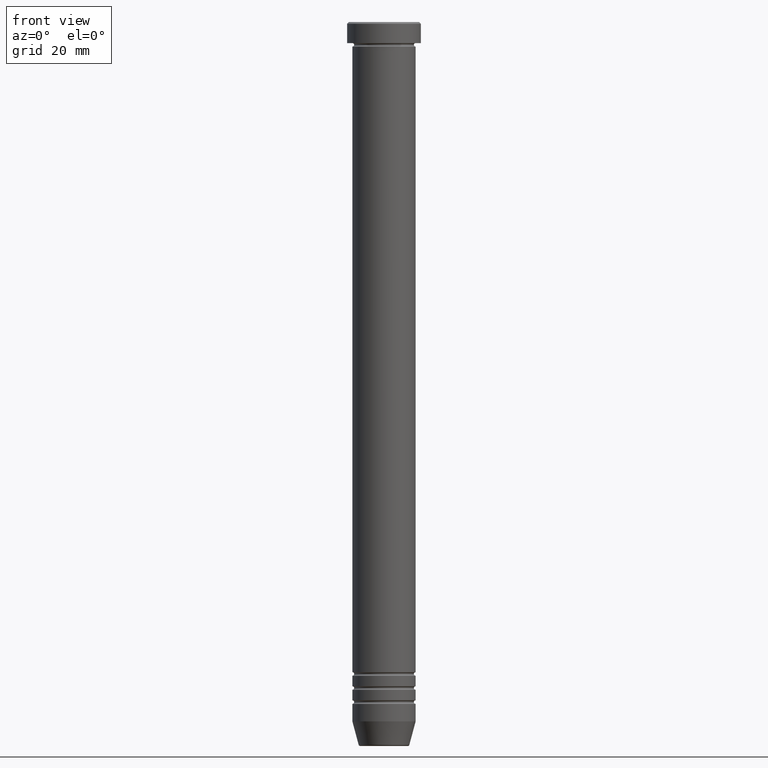
[diagram: clean part render]
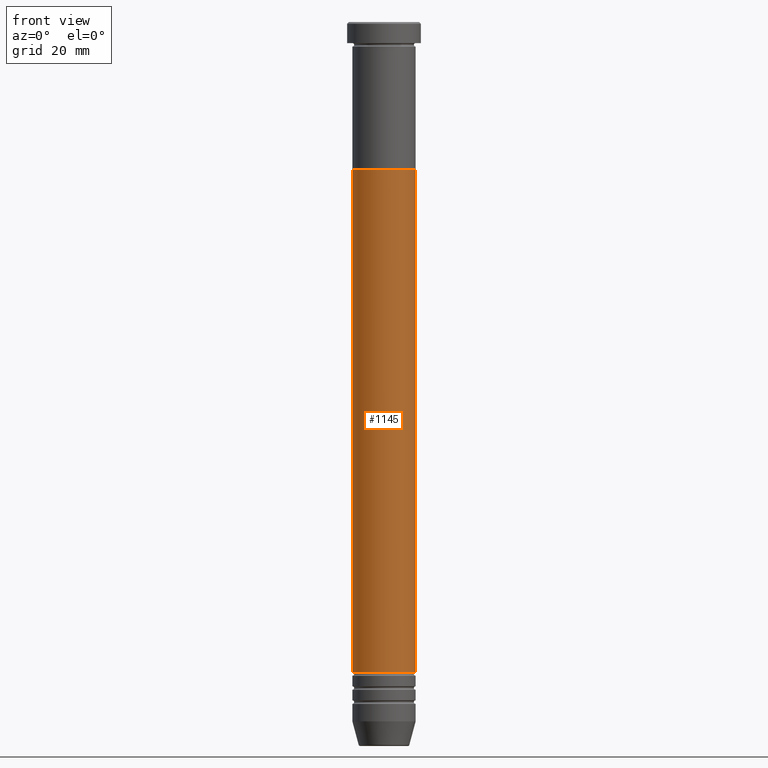
[diagram: same view with one face highlighted and labeled with its STEP entity id]
A machine part, front view. The second image highlights one B-rep face of the part: STEP entity #1145.
In plain terms, the highlighted cylindrical surface (edge-blend (fillet) strip) has radius 9 mm, axis along (-0, -0, 1).
Its self-contained STEP definition (entity closure, byte-faithful):
#23 = VERTEX_POINT ( 'NONE', #442 ) ;
#34 = EDGE_CURVE ( 'NONE', #152, #285, #643, .T. ) ;
#42 = CARTESIAN_POINT ( 'NONE',  ( 0.000000000000000000, 0.000000000000000000, -185.0000000000000284 ) ) ;
#49 = CARTESIAN_POINT ( 'NONE',  ( -8.999999999999996447, 1.102182119232617319E-15, 0.000000000000000000 ) ) ;
#77 = CARTESIAN_POINT ( 'NONE',  ( -9.000000000000000000, 1.102182119232617911E-15, -41.99999999999999289 ) ) ;
#112 = ORIENTED_EDGE ( 'NONE', *, *, #34, .F. ) ;
#113 = DIRECTION ( 'NONE',  ( -0.000000000000000000, -0.000000000000000000, 1.000000000000000000 ) ) ;
#152 = VERTEX_POINT ( 'NONE', #77 ) ;
#285 = VERTEX_POINT ( 'NONE', #992 ) ;
#325 = DIRECTION ( 'NONE',  ( -0.000000000000000000, -0.000000000000000000, 1.000000000000000000 ) ) ;
#368 = CARTESIAN_POINT ( 'NONE',  ( 0.000000000000000000, 0.000000000000000000, -41.99999999999999289 ) ) ;
#390 = EDGE_CURVE ( 'NONE', #633, #152, #850, .T. ) ;
#403 = VECTOR ( 'NONE', #920, 1000.000000000000000 ) ;
#406 = DIRECTION ( 'NONE',  ( -0.000000000000000000, -0.000000000000000000, 1.000000000000000000 ) ) ;
#408 = FACE_OUTER_BOUND ( 'NONE', #600, .T. ) ;
#442 = CARTESIAN_POINT ( 'NONE',  ( 8.999999999999992895, 0.000000000000000000, -185.0000000000000284 ) ) ;
#462 = DIRECTION ( 'NONE',  ( -0.000000000000000000, -0.000000000000000000, 1.000000000000000000 ) ) ;
#464 = EDGE_CURVE ( 'NONE', #23, #285, #740, .T. ) ;
#480 = CIRCLE ( 'NONE', #808, 8.999999999999992895 ) ;
#489 = ORIENTED_EDGE ( 'NONE', *, *, #891, .T. ) ;
#569 = ORIENTED_EDGE ( 'NONE', *, *, #464, .T. ) ;
#600 = EDGE_LOOP ( 'NONE', ( #839, #489, #569, #112 ) ) ;
#633 = VERTEX_POINT ( 'NONE', #1046 ) ;
#643 = CIRCLE ( 'NONE', #1086, 9.000000000000000000 ) ;
#648 = DIRECTION ( 'NONE',  ( 1.000000000000000000, 0.000000000000000000, 0.000000000000000000 ) ) ;
#678 = DIRECTION ( 'NONE',  ( 1.000000000000000000, 0.000000000000000000, 0.000000000000000000 ) ) ;
#740 = LINE ( 'NONE', #1078, #403 ) ;
#766 = CYLINDRICAL_SURFACE ( 'NONE', #894, 8.999999999999996447 ) ;
#808 = AXIS2_PLACEMENT_3D ( 'NONE', #42, #113, #1082 ) ;
#839 = ORIENTED_EDGE ( 'NONE', *, *, #390, .F. ) ;
#850 = LINE ( 'NONE', #49, #1067 ) ;
#891 = EDGE_CURVE ( 'NONE', #633, #23, #480, .T. ) ;
#894 = AXIS2_PLACEMENT_3D ( 'NONE', #1115, #325, #678 ) ;
#920 = DIRECTION ( 'NONE',  ( -0.000000000000000000, -0.000000000000000000, 1.000000000000000000 ) ) ;
#992 = CARTESIAN_POINT ( 'NONE',  ( 9.000000000000000000, 0.000000000000000000, -41.99999999999999289 ) ) ;
#1046 = CARTESIAN_POINT ( 'NONE',  ( -8.999999999999992895, 1.102182119232617122E-15, -185.0000000000000284 ) ) ;
#1067 = VECTOR ( 'NONE', #406, 1000.000000000000000 ) ;
#1078 = CARTESIAN_POINT ( 'NONE',  ( 8.999999999999996447, 0.000000000000000000, 0.000000000000000000 ) ) ;
#1082 = DIRECTION ( 'NONE',  ( 1.000000000000000000, 0.000000000000000000, 0.000000000000000000 ) ) ;
#1086 = AXIS2_PLACEMENT_3D ( 'NONE', #368, #462, #648 ) ;
#1115 = CARTESIAN_POINT ( 'NONE',  ( 0.000000000000000000, 0.000000000000000000, 0.000000000000000000 ) ) ;
#1145 = ADVANCED_FACE ( 'NONE', ( #408 ), #766, .T. ) ;